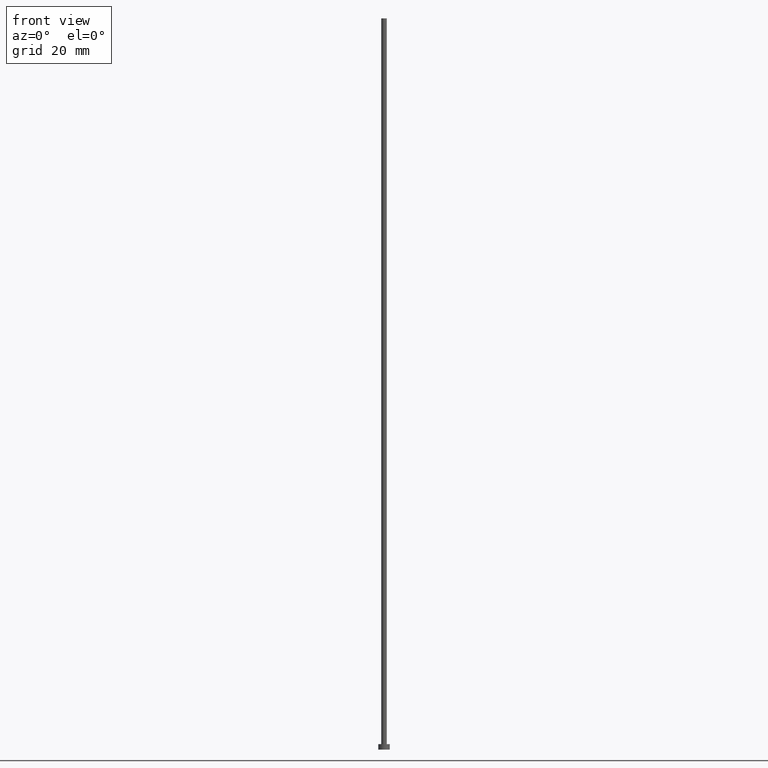
[diagram: clean part render]
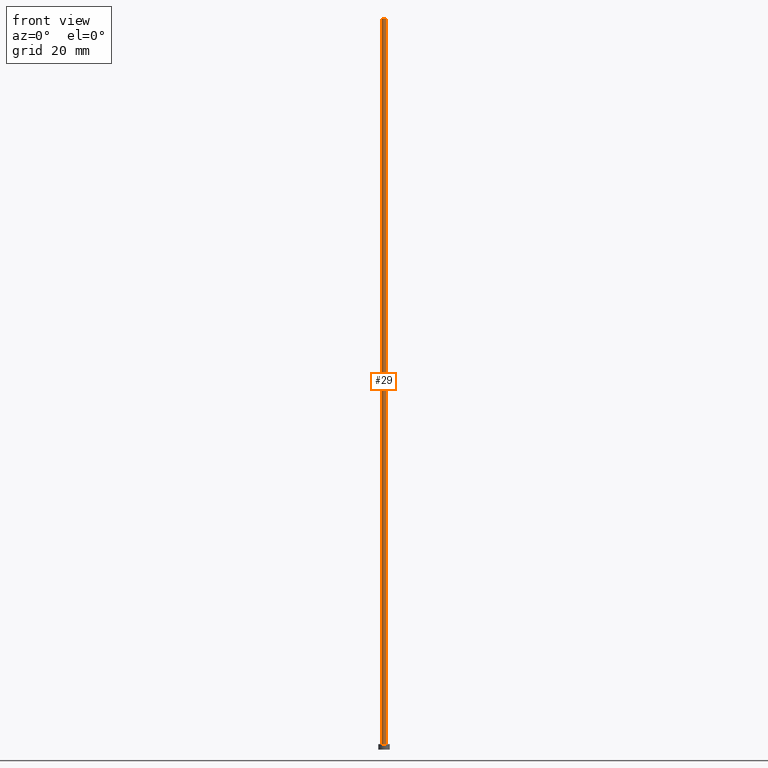
[diagram: same view with one face highlighted and labeled with its STEP entity id]
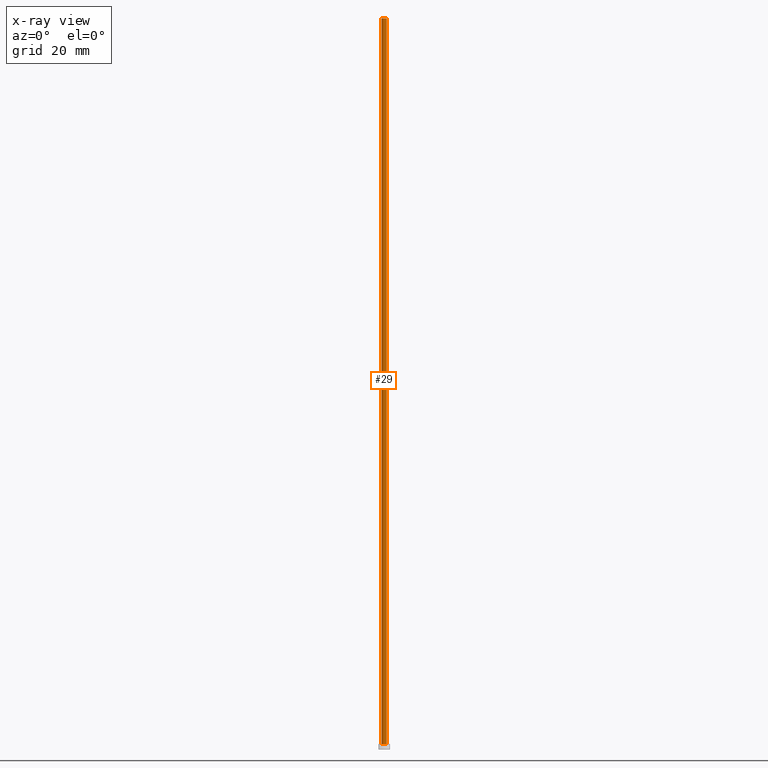
[diagram: x-ray of the same camera — body ghosted, the highlighted face saturated]
A machine part, front view. The second image highlights one B-rep face of the part: STEP entity #29.
The next image is the same camera in x-ray: the body ghosted, the highlighted face saturated — about 0% of this face is hidden behind the body in this view.
In plain terms, the highlighted cylindrical surface (edge-blend (fillet) strip) has radius 0.6 mm, axis along (-0, -0, -1).
Its self-contained STEP definition (entity closure, byte-faithful):
#8 = CYLINDRICAL_SURFACE ( 'NONE', #36, 0.5999999999999999778 ) ;
#15 = DIRECTION ( 'NONE',  ( -0.000000000000000000, -0.000000000000000000, -1.000000000000000000 ) ) ;
#22 = CARTESIAN_POINT ( 'NONE',  ( 0.000000000000000000, 0.000000000000000000, 160.0000000000000284 ) ) ;
#23 = EDGE_CURVE ( 'NONE', #146, #188, #253, .T. ) ;
#28 = DIRECTION ( 'NONE',  ( 1.000000000000000000, 0.000000000000000000, 0.000000000000000000 ) ) ;
#29 = ADVANCED_FACE ( 'NONE', ( #114 ), #8, .T. ) ;
#36 = AXIS2_PLACEMENT_3D ( 'NONE', #222, #171, #185 ) ;
#40 = AXIS2_PLACEMENT_3D ( 'NONE', #22, #164, #28 ) ;
#48 = VECTOR ( 'NONE', #15, 1000.000000000000000 ) ;
#64 = ORIENTED_EDGE ( 'NONE', *, *, #79, .T. ) ;
#65 = DIRECTION ( 'NONE',  ( 0.000000000000000000, 0.000000000000000000, 1.000000000000000000 ) ) ;
#73 = CARTESIAN_POINT ( 'NONE',  ( -0.5999999999999999778, 0.000000000000000000, 160.0000000000000284 ) ) ;
#79 = EDGE_CURVE ( 'NONE', #119, #146, #241, .T. ) ;
#84 = AXIS2_PLACEMENT_3D ( 'NONE', #187, #65, #204 ) ;
#92 = VECTOR ( 'NONE', #154, 1000.000000000000000 ) ;
#114 = FACE_OUTER_BOUND ( 'NONE', #220, .T. ) ;
#119 = VERTEX_POINT ( 'NONE', #135 ) ;
#120 = ORIENTED_EDGE ( 'NONE', *, *, #168, .F. ) ;
#135 = CARTESIAN_POINT ( 'NONE',  ( -0.5999999999999999778, 0.000000000000000000, 160.0000000000000284 ) ) ;
#146 = VERTEX_POINT ( 'NONE', #250 ) ;
#150 = CARTESIAN_POINT ( 'NONE',  ( 0.5999999999999999778, 7.347880794884117764E-17, 160.0000000000000284 ) ) ;
#154 = DIRECTION ( 'NONE',  ( -0.000000000000000000, -0.000000000000000000, -1.000000000000000000 ) ) ;
#164 = DIRECTION ( 'NONE',  ( 0.000000000000000000, 0.000000000000000000, 1.000000000000000000 ) ) ;
#168 = EDGE_CURVE ( 'NONE', #193, #188, #231, .T. ) ;
#171 = DIRECTION ( 'NONE',  ( -0.000000000000000000, -0.000000000000000000, -1.000000000000000000 ) ) ;
#185 = DIRECTION ( 'NONE',  ( -1.000000000000000000, 0.000000000000000000, 0.000000000000000000 ) ) ;
#187 = CARTESIAN_POINT ( 'NONE',  ( 0.000000000000000000, 0.000000000000000000, 1.199999999999999956 ) ) ;
#188 = VERTEX_POINT ( 'NONE', #209 ) ;
#193 = VERTEX_POINT ( 'NONE', #150 ) ;
#196 = ORIENTED_EDGE ( 'NONE', *, *, #232, .F. ) ;
#204 = DIRECTION ( 'NONE',  ( 1.000000000000000000, 0.000000000000000000, 0.000000000000000000 ) ) ;
#209 = CARTESIAN_POINT ( 'NONE',  ( 0.5999999999999999778, 7.347880794884117764E-17, 1.199999999999999956 ) ) ;
#213 = ORIENTED_EDGE ( 'NONE', *, *, #23, .T. ) ;
#215 = CIRCLE ( 'NONE', #40, 0.5999999999999999778 ) ;
#220 = EDGE_LOOP ( 'NONE', ( #120, #196, #64, #213 ) ) ;
#222 = CARTESIAN_POINT ( 'NONE',  ( 0.000000000000000000, 0.000000000000000000, 160.0000000000000284 ) ) ;
#228 = CARTESIAN_POINT ( 'NONE',  ( 0.5999999999999999778, 7.347880794884117764E-17, 160.0000000000000284 ) ) ;
#231 = LINE ( 'NONE', #228, #48 ) ;
#232 = EDGE_CURVE ( 'NONE', #119, #193, #215, .T. ) ;
#241 = LINE ( 'NONE', #73, #92 ) ;
#250 = CARTESIAN_POINT ( 'NONE',  ( -0.5999999999999999778, 0.000000000000000000, 1.199999999999999956 ) ) ;
#253 = CIRCLE ( 'NONE', #84, 0.5999999999999999778 ) ;